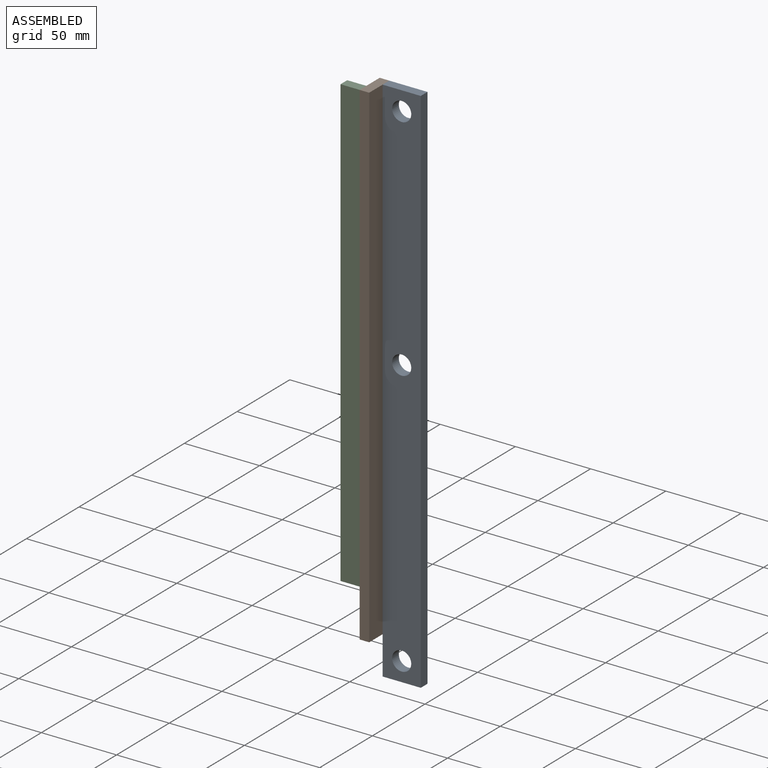
[diagram: assembled view]
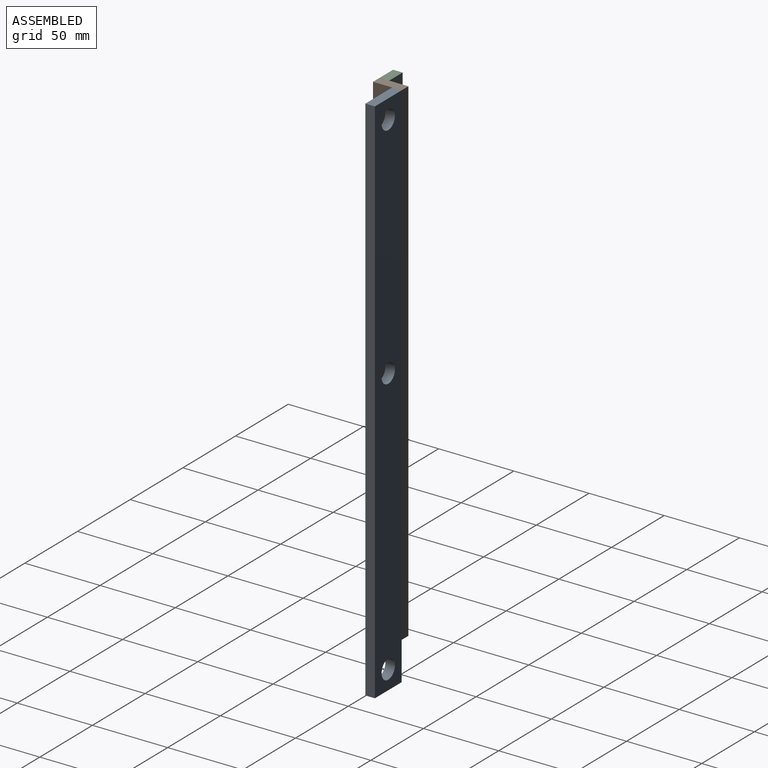
[diagram: assembled view, second angle]
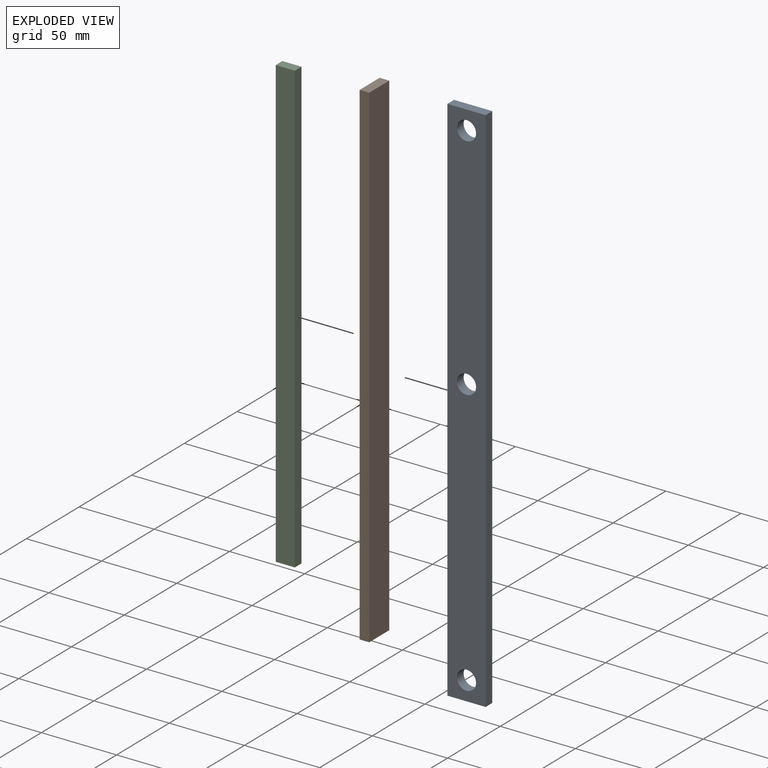
[diagram: exploded view]
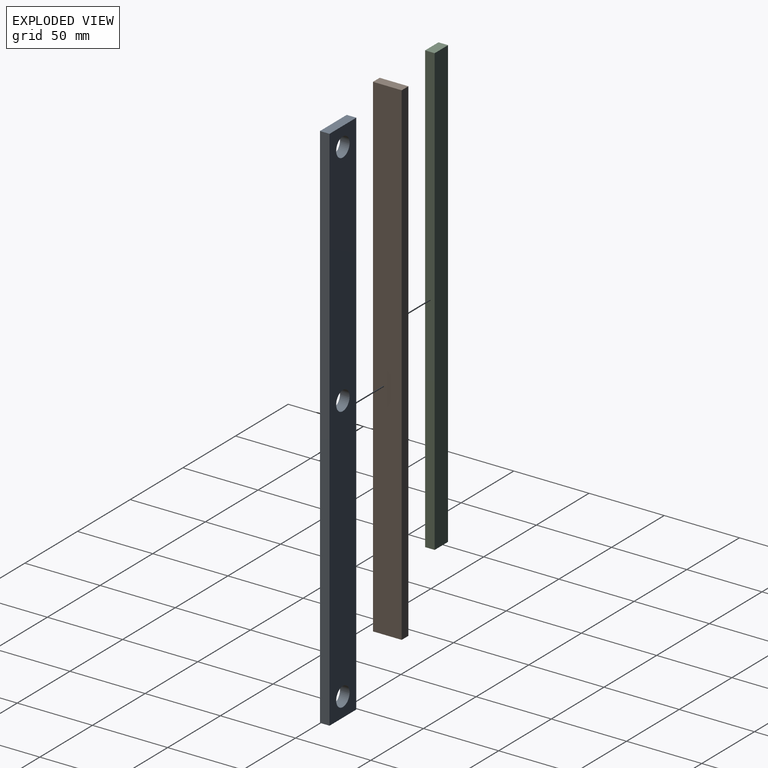
[diagram: exploded view, second angle]
ASSEMBLY  parts=3 mates=2
PART A: 9 faces, bbox 25.4x6.4x355.6 mm
  f0: plane 25.4x6.35mm, normal (0,0,1), area 161.3mm2, adj f1,f3,f4,f5
  f1: plane 355.6x6.35mm, normal (-1,0,0), area 2258.1mm2, adj f0,f2,f4,f5
  f2: plane 25.4x6.35mm, normal (0,0,-1), area 161.3mm2, adj f1,f3,f4,f5
  f3: plane 355.6x6.35mm, normal (1,0,0), area 2258.1mm2, adj f0,f2,f4,f5
  f4: plane 355.6x25.4mm, normal (0,-1,0), area 8652.2mm2, adj f0,f1,f2,f3,f6,f7,f8
  f5: plane 355.6x25.4mm, normal (0,1,0), area 8652.2mm2, adj f0,f1,f2,f3,f6,f7,f8
  f6: cylinder r=6.35mm len=12.7mm, axis (0,-1,0), area 253.4mm2, adj f4,f5
  f7: cylinder r=6.35mm len=12.7mm, axis (0,-1,0), area 253.4mm2, adj f4,f5
  f8: cylinder r=6.35mm len=12.7mm, axis (0,-1,0), area 253.4mm2, adj f4,f5
PART B: 6 faces, bbox 6.4x19.1x330.2 mm
  f0: plane 19.05x6.35mm, normal (0,0,-1), area 121mm2, adj f1,f3,f4,f5
  f1: plane 330.2x6.35mm, normal (0,1,0), area 2096.8mm2, adj f0,f2,f4,f5
  f2: plane 19.05x6.35mm, normal (0,0,1), area 121mm2, adj f1,f3,f4,f5
  f3: plane 330.2x6.35mm, normal (0,-1,0), area 2096.8mm2, adj f0,f2,f4,f5
  f4: plane 330.2x19.05mm, normal (1,0,0), area 6290.3mm2, adj f0,f1,f2,f3
  f5: plane 330.2x19.05mm, normal (-1,0,0), area 6290.3mm2, adj f0,f1,f2,f3
PART C: 6 faces, bbox 12.7x6.4x298.5 mm
  f0: plane 298.45x6.35mm, normal (-1,0,0), area 1895.2mm2, adj f1,f3,f4,f5
  f1: plane 12.7x6.35mm, normal (0,0,-1), area 80.6mm2, adj f0,f2,f4,f5
  f2: plane 298.45x6.35mm, normal (1,0,0), area 1895.2mm2, adj f1,f3,f4,f5
  f3: plane 12.7x6.35mm, normal (0,0,1), area 80.6mm2, adj f0,f2,f4,f5
  f4: plane 298.45x12.7mm, normal (0,-1,0), area 3790.3mm2, adj f0,f1,f2,f3
  f5: plane 298.45x12.7mm, normal (0,1,0), area 3790.3mm2, adj f0,f1,f2,f3
PLACE A t=(125.53,12.7,-40.08)mm
PLACE B t=(61.01,29.24,58.93)mm
PLACE C t=(0,0,31.75)mm
MATE fastened B.f5 <-> C.f2  axis (-1,0,0) through (61.01,-6.35,346.19)mm
MATE fastened A.f1 <-> B.f4  axis (-1,0,0) through (67.36,12.7,346.19)mm
